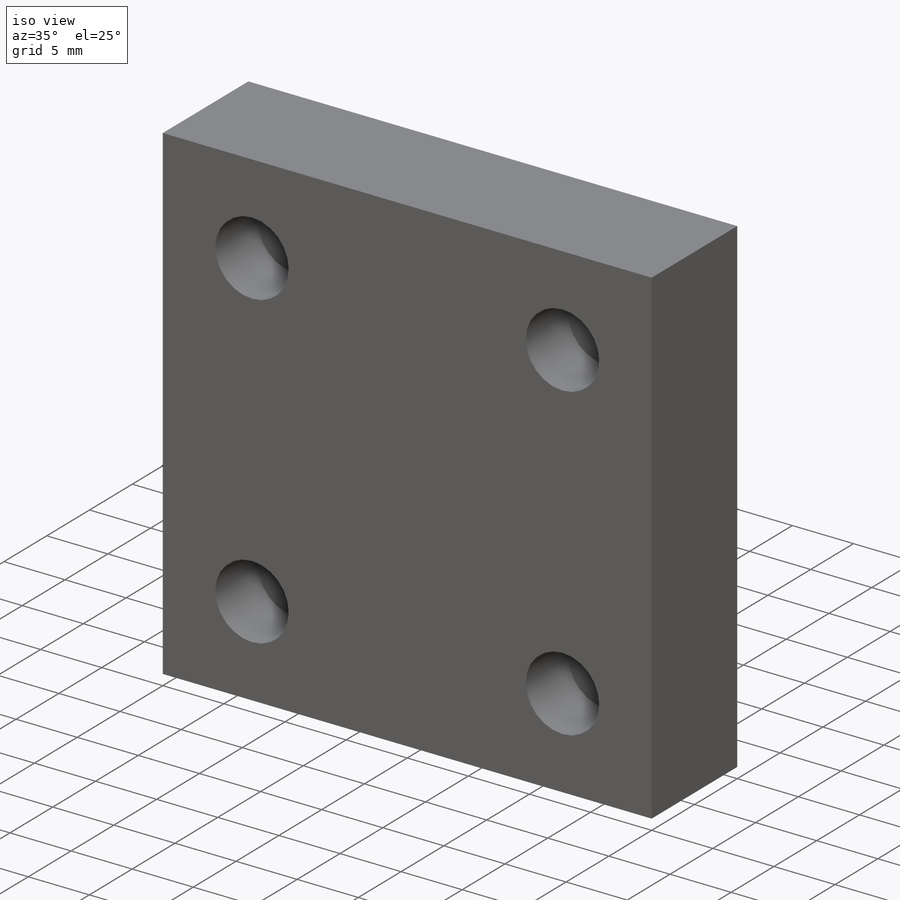
[diagram: iso view]
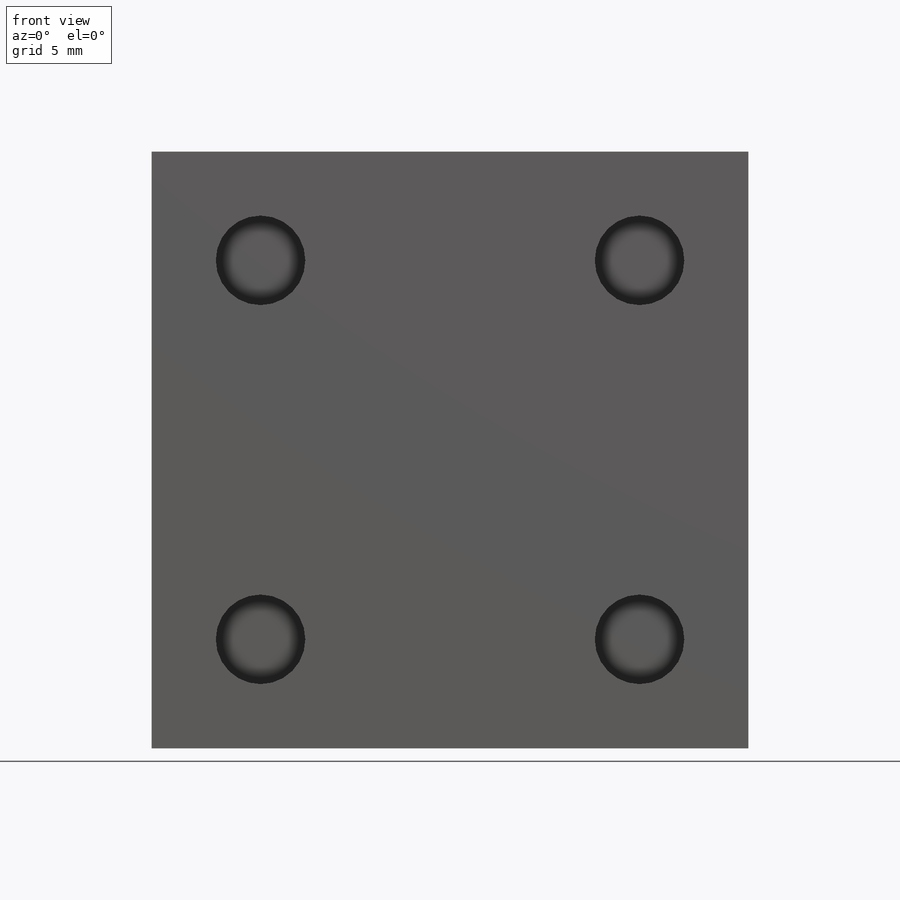
[diagram: front view]
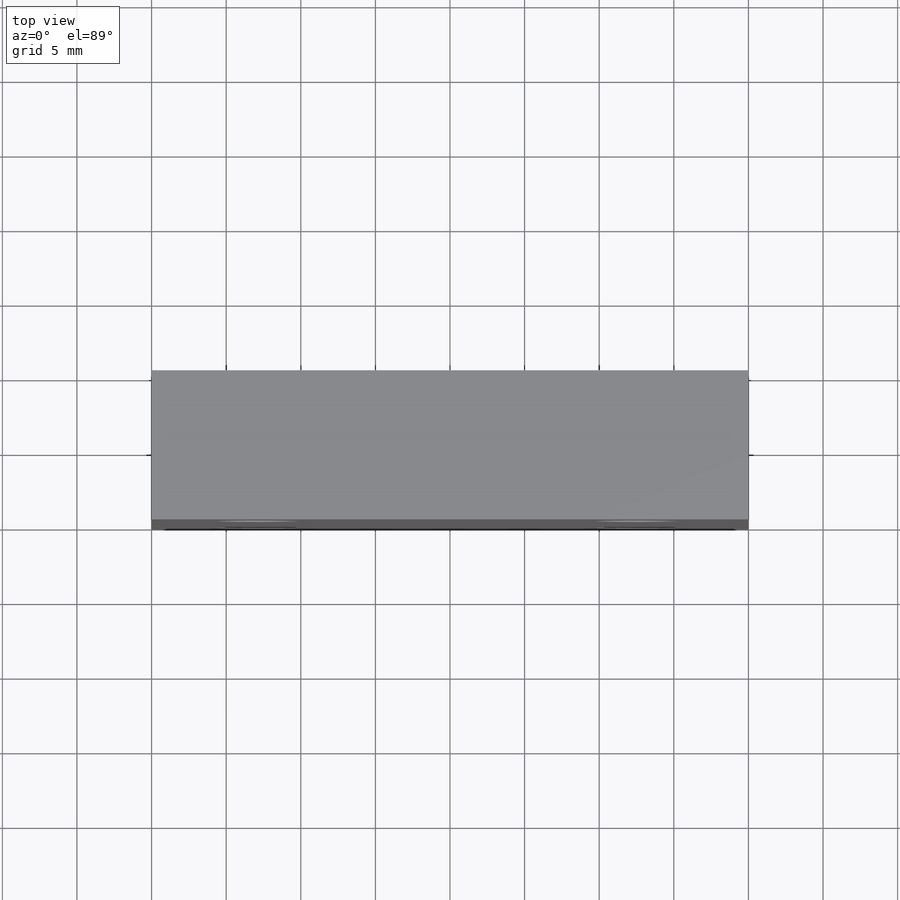
[diagram: top view]
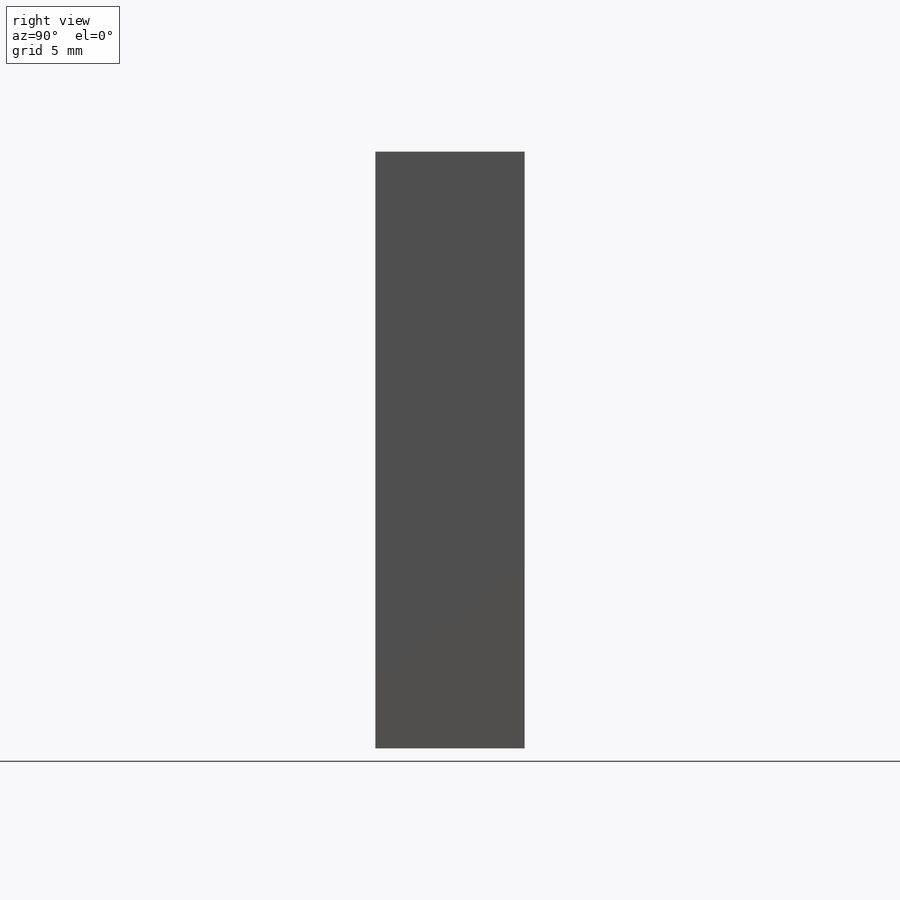
[diagram: right view]
SOLIDWORKS PART (.sldprt)
format: sldprt  version: not decoded by parser v0  size: 206,848 bytes
history: native  units: mm
features: sketch x3, cut_extrude x2, material x1, extrude x1 (+12 scaffold rows collapsed)
feature tree (19):
  scaffold x12  (default folders/planes/origin — collapsed)
  material  "Material <not specified>"
  sketch  "Sketch1"  dims[c1.D1=~73.745526mm c1.D2=~115.580723mm c2.D1=40.0mm c2.D2=40.0mm]
  extrude  "Boss-Extrude1"  Depth=10mm
  sketch  "Sketch2"  dims[c1.D1=2.642mm c1.D2=2.642mm c1.D3=2.642mm c2.D2=2.642mm c2.D3=2.642mm c2.D4=2.64mm c2.D5=2.642mm c2.D6=2.64mm c2.D7=2.642mm c2.D8=2.64mm c2.D9=2.642mm c2.D10=2.642mm c2.D11=2.642mm c2.D12=2.642mm c2.D13=2.642mm c2.D15=2.642mm c3.D3=2.64mm c3.D5=2.64mm c3.D6=2.64mm c3.D7=2.642mm c4.D6=2.64mm c4.D1=2.64mm c4.D2=2.64mm c4.D3=5.375mm c5.D2=6.575mm c5.D5=3.725mm c5.D6=3.725mm c5.D7=4.125mm c5.D8=4.125mm c5.D9=3.725mm c5.D10=4.125mm c5.D11=4.125mm c5.D12=4.525mm c5.D14=4.525mm c5.D15=4.125mm c5.D3=4.13mm c6.D5=4.125mm c6.D6=31.75mm c6.D1=31.75mm c6.D2=31.75mm c7.D6=2.0 c7.D7=2.0]
  cut_extrude  "Cut-Extrude2"  Depth=5mm
  sketch  "Sketch5"  dims[c1.D1=6.0mm c1.D2=6.0mm c1.D3=6.0mm c1.D6=6.0mm c2.D2=7.3mm c2.D3=7.3mm c2.D6=25.4mm c2.D4=2.0 c2.D5=2.0]
  cut_extrude  "Cut-Extrude3"  Depth=5mm
decode coverage: 6 of 6 modeling features carry decoded parameters
note: ~ marks probable driven/reference dimensions
note: suppression state not decoded; provenance and decode notes live in map.json
